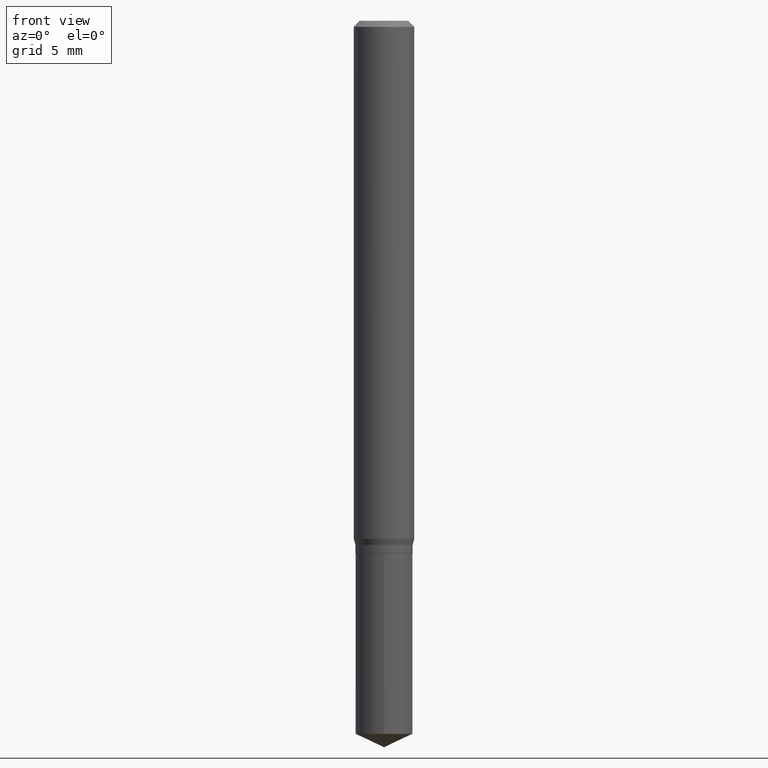
[diagram: clean part render]
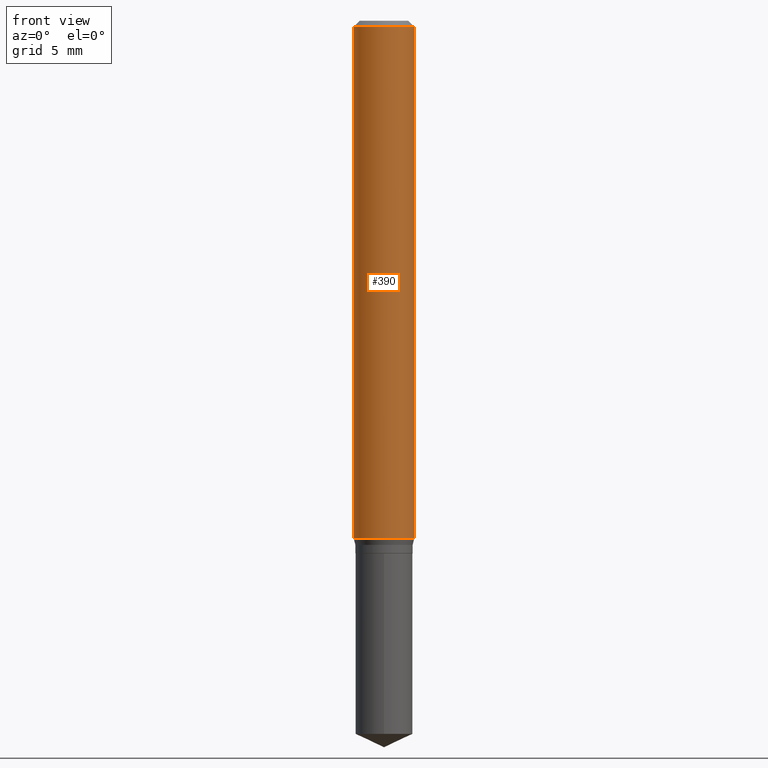
[diagram: same view with one face highlighted and labeled with its STEP entity id]
A machine part, front view. The second image highlights one B-rep face of the part: STEP entity #390.
In plain terms, the highlighted cylindrical surface (edge-blend (fillet) strip) has radius 1.5875 mm, axis along (-0, 0, 1).
Its self-contained STEP definition (entity closure, byte-faithful):
#1 = DIRECTION ( 'NONE',  ( -2.445468806185136877E-29, 3.491481338843145188E-15, 1.000000000000000000 ) ) ;
#7 = EDGE_CURVE ( 'NONE', #168, #473, #228, .T. ) ;
#14 = CARTESIAN_POINT ( 'NONE',  ( -0.06250000000000006939, 4.440892098500631092E-16, -3.074334431409319267E-30 ) ) ;
#16 = DIRECTION ( 'NONE',  ( -2.445468806185136597E-29, 3.491481338843145583E-15, 1.000000000000000000 ) ) ;
#38 = DIRECTION ( 'NONE',  ( -2.445468806185136597E-29, 3.491481338843145583E-15, 1.000000000000000000 ) ) ;
#40 = AXIS2_PLACEMENT_3D ( 'NONE', #459, #38, #177 ) ;
#49 = VECTOR ( 'NONE', #1, 39.37007874015748143 ) ;
#74 = VECTOR ( 'NONE', #154, 39.37007874015748143 ) ;
#77 = EDGE_CURVE ( 'NONE', #362, #318, #113, .T. ) ;
#92 = CYLINDRICAL_SURFACE ( 'NONE', #374, 0.06250000000000006939 ) ;
#97 = CARTESIAN_POINT ( 'NONE',  ( 0.06250000000000012490, -4.170310589546995450E-15, -1.069424424713886879 ) ) ;
#113 = CIRCLE ( 'NONE', #157, 0.06250000000000012490 ) ;
#124 = ORIENTED_EDGE ( 'NONE', *, *, #7, .F. ) ;
#131 = DIRECTION ( 'NONE',  ( 1.000000000000000000, -6.982962677686266711E-15, 4.876176775795935793E-29 ) ) ;
#147 = CARTESIAN_POINT ( 'NONE',  ( 0.06250000000000000000, -4.800786840909312308E-16, -0.01250000000000008049 ) ) ;
#150 = LINE ( 'NONE', #14, #74 ) ;
#154 = DIRECTION ( 'NONE',  ( -2.445468806185136877E-29, 3.491481338843145188E-15, 1.000000000000000000 ) ) ;
#157 = AXIS2_PLACEMENT_3D ( 'NONE', #337, #16, #265 ) ;
#168 = VERTEX_POINT ( 'NONE', #386 ) ;
#172 = ORIENTED_EDGE ( 'NONE', *, *, #77, .T. ) ;
#177 = DIRECTION ( 'NONE',  ( 1.000000000000000000, -6.982962677686266711E-15, 0.000000000000000000 ) ) ;
#208 = EDGE_CURVE ( 'NONE', #362, #168, #150, .T. ) ;
#228 = CIRCLE ( 'NONE', #40, 0.06250000000000000000 ) ;
#247 = FACE_OUTER_BOUND ( 'NONE', #438, .T. ) ;
#265 = DIRECTION ( 'NONE',  ( 1.000000000000000000, -6.982962677686264344E-15, 0.000000000000000000 ) ) ;
#310 = DIRECTION ( 'NONE',  ( -2.445468806185136597E-29, 3.491481338843145583E-15, 1.000000000000000000 ) ) ;
#318 = VERTEX_POINT ( 'NONE', #97 ) ;
#337 = CARTESIAN_POINT ( 'NONE',  ( 2.615244071210295996E-29, -3.733875422191602991E-15, -1.069424424713886879 ) ) ;
#362 = VERTEX_POINT ( 'NONE', #406 ) ;
#368 = ORIENTED_EDGE ( 'NONE', *, *, #462, .T. ) ;
#374 = AXIS2_PLACEMENT_3D ( 'NONE', #477, #310, #131 ) ;
#375 = ORIENTED_EDGE ( 'NONE', *, *, #208, .F. ) ;
#386 = CARTESIAN_POINT ( 'NONE',  ( -0.06250000000000000000, -1.444670259613507477E-15, -0.01250000000000008049 ) ) ;
#390 = ADVANCED_FACE ( 'NONE', ( #247 ), #92, .T. ) ;
#406 = CARTESIAN_POINT ( 'NONE',  ( -0.06250000000000012490, -3.289786212341539192E-15, -1.069424424713886879 ) ) ;
#417 = CARTESIAN_POINT ( 'NONE',  ( 0.06250000000000006939, -4.364351673553921624E-16, 3.047610484872463374E-30 ) ) ;
#438 = EDGE_LOOP ( 'NONE', ( #375, #172, #368, #124 ) ) ;
#447 = LINE ( 'NONE', #417, #49 ) ;
#459 = CARTESIAN_POINT ( 'NONE',  ( 3.056836007731440539E-31, -4.364351673553960451E-17, -0.01250000000000008049 ) ) ;
#462 = EDGE_CURVE ( 'NONE', #318, #473, #447, .T. ) ;
#473 = VERTEX_POINT ( 'NONE', #147 ) ;
#477 = CARTESIAN_POINT ( 'NONE',  ( 0.000000000000000000, 0.000000000000000000, 0.000000000000000000 ) ) ;